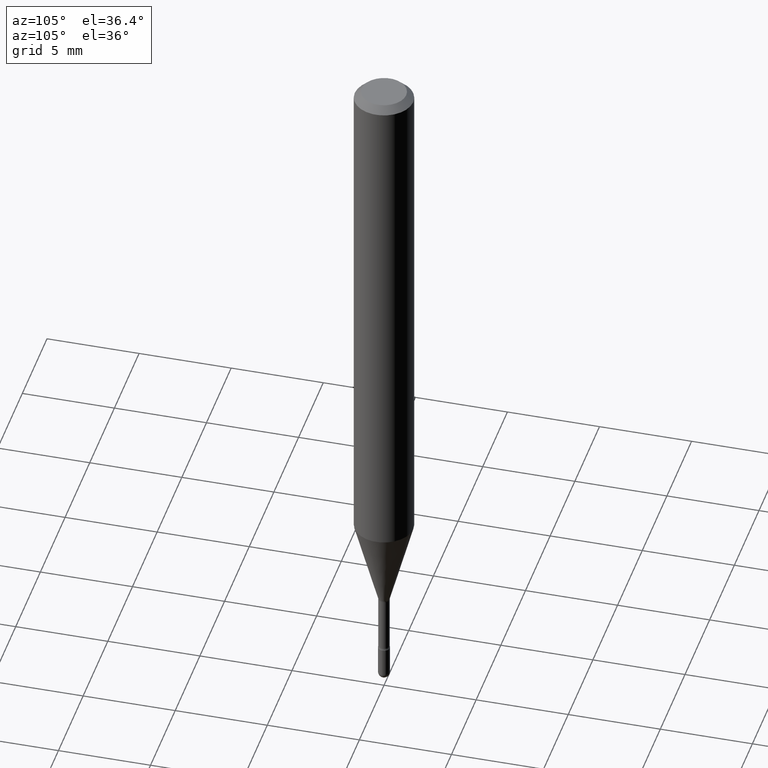
[diagram: clean part render]
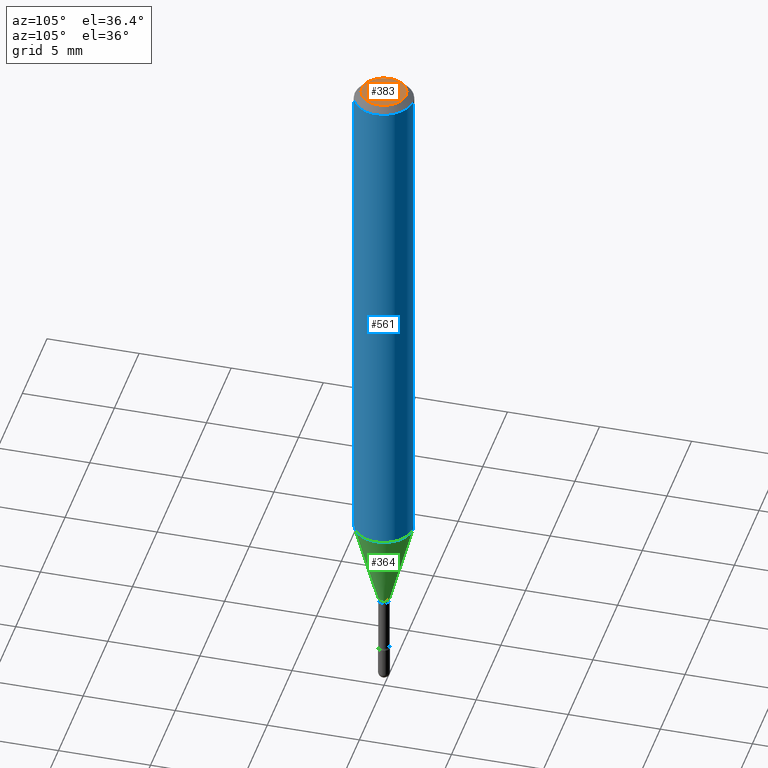
[diagram: same view with three faces highlighted in distinct colors, each labeled with its STEP entity id]
A machine part, auxiliary view with three faces highlighted in distinct colors.
Their STEP definitions:

[orange] entity #383 — the highlighted planar face has unit normal (0, -0, -1).
#10 = EDGE_CURVE ( 'NONE', #212, #291, #296, .T. ) ;
#27 = CARTESIAN_POINT ( 'NONE',  ( 3.316907271900976096E-16, 0.04749999999999999362, 3.181419317578622669E-17 ) ) ;
#38 = CARTESIAN_POINT ( 'NONE',  ( 2.022777484196571677E-45, -2.889700301407352893E-31, -8.273977879351593890E-17 ) ) ;
#48 = AXIS2_PLACEMENT_3D ( 'NONE', #507, #234, #360 ) ;
#63 = ORIENTED_EDGE ( 'NONE', *, *, #303, .T. ) ;
#66 = PLANE ( 'NONE',  #207 ) ;
#195 = DIRECTION ( 'NONE',  ( 2.445362175932988098E-29, -3.491634039433238901E-15, -1.000000000000000000 ) ) ;
#207 = AXIS2_PLACEMENT_3D ( 'NONE', #27, #195, #362 ) ;
#212 = VERTEX_POINT ( 'NONE', #251 ) ;
#234 = DIRECTION ( 'NONE',  ( -2.445362175932988378E-29, 3.491634039433238901E-15, 1.000000000000000000 ) ) ;
#251 = CARTESIAN_POINT ( 'NONE',  ( -3.773273898774340269E-16, -0.04749999999999999362, 8.311283807956289658E-17 ) ) ;
#264 = DIRECTION ( 'NONE',  ( -2.445362175932988378E-29, 3.491634039433238901E-15, 1.000000000000000000 ) ) ;
#280 = CIRCLE ( 'NONE', #48, 0.04749999999999999362 ) ;
#291 = VERTEX_POINT ( 'NONE', #464 ) ;
#296 = CIRCLE ( 'NONE', #534, 0.04749999999999999362 ) ;
#303 = EDGE_CURVE ( 'NONE', #291, #212, #280, .T. ) ;
#319 = ORIENTED_EDGE ( 'NONE', *, *, #10, .T. ) ;
#359 = EDGE_LOOP ( 'NONE', ( #63, #319 ) ) ;
#360 = DIRECTION ( 'NONE',  ( -6.982962677686266711E-15, -1.000000000000000000, 3.491634039433238901E-15 ) ) ;
#362 = DIRECTION ( 'NONE',  ( 6.982962677686265922E-15, 1.000000000000000000, -3.491634039433238901E-15 ) ) ;
#383 = ADVANCED_FACE ( 'NONE', ( #463 ), #66, .F. ) ;
#403 = DIRECTION ( 'NONE',  ( -6.982962677686266711E-15, -1.000000000000000000, 3.491634039433238901E-15 ) ) ;
#463 = FACE_OUTER_BOUND ( 'NONE', #359, .T. ) ;
#464 = CARTESIAN_POINT ( 'NONE',  ( 3.840629472727447874E-16, 0.04749999999999999362, -2.485923956665947867E-16 ) ) ;
#507 = CARTESIAN_POINT ( 'NONE',  ( 2.022777484196571677E-45, -2.889700301407352893E-31, -8.273977879351593890E-17 ) ) ;
#534 = AXIS2_PLACEMENT_3D ( 'NONE', #38, #264, #403 ) ;

[blue] entity #561 — the highlighted cylindrical surface (edge-blend (fillet) strip) has radius 1.5875 mm, axis along (-0, 0, 1).
#22 = ORIENTED_EDGE ( 'NONE', *, *, #286, .F. ) ;
#25 = AXIS2_PLACEMENT_3D ( 'NONE', #119, #439, #289 ) ;
#37 = EDGE_CURVE ( 'NONE', #467, #414, #210, .T. ) ;
#97 = EDGE_CURVE ( 'NONE', #467, #279, #197, .T. ) ;
#116 = DIRECTION ( 'NONE',  ( -2.445362175932988378E-29, 3.491634039433238901E-15, 1.000000000000000000 ) ) ;
#119 = CARTESIAN_POINT ( 'NONE',  ( -1.169113584055446105E-44, 1.669184350826100908E-30, 4.780733988912460139E-16 ) ) ;
#120 = DIRECTION ( 'NONE',  ( -2.445362175932988378E-29, 3.491634039433238901E-15, 1.000000000000000000 ) ) ;
#141 = ORIENTED_EDGE ( 'NONE', *, *, #97, .T. ) ;
#171 = CARTESIAN_POINT ( 'NONE',  ( 4.440892098500625669E-16, 0.06250000000000000000, 2.598462714266686566E-16 ) ) ;
#196 = CARTESIAN_POINT ( 'NONE',  ( 4.440892098500896347E-16, 0.06249999999999612116, -1.110598421515880174 ) ) ;
#197 = CIRCLE ( 'NONE', #357, 0.06250000000000000000 ) ;
#210 = LINE ( 'NONE', #475, #505 ) ;
#218 = FACE_OUTER_BOUND ( 'NONE', #368, .T. ) ;
#240 = CARTESIAN_POINT ( 'NONE',  ( -4.364351673553912750E-16, -0.06250000000000005551, -0.01499999999999986587 ) ) ;
#279 = VERTEX_POINT ( 'NONE', #196 ) ;
#286 = EDGE_CURVE ( 'NONE', #414, #497, #469, .T. ) ;
#289 = DIRECTION ( 'NONE',  ( -6.982962677686265922E-15, -1.000000000000000000, 3.491634039433238901E-15 ) ) ;
#304 = ORIENTED_EDGE ( 'NONE', *, *, #537, .T. ) ;
#321 = DIRECTION ( 'NONE',  ( -6.982962677686265922E-15, -1.000000000000000000, 3.483106191921935554E-15 ) ) ;
#326 = DIRECTION ( 'NONE',  ( -2.445362175932988378E-29, 3.491634039433238901E-15, 1.000000000000000000 ) ) ;
#339 = LINE ( 'NONE', #171, #500 ) ;
#357 = AXIS2_PLACEMENT_3D ( 'NONE', #473, #120, #388 ) ;
#363 = CARTESIAN_POINT ( 'NONE',  ( 3.668043263899502851E-31, -5.237451059149887318E-17, -0.01500000000000008271 ) ) ;
#368 = EDGE_LOOP ( 'NONE', ( #141, #304, #22, #457 ) ) ;
#388 = DIRECTION ( 'NONE',  ( -6.982962677686265922E-15, -1.000000000000000000, 4.370956789862821150E-15 ) ) ;
#393 = CARTESIAN_POINT ( 'NONE',  ( 4.440892098500899305E-16, 0.06249999999999995143, -0.01500000000000030129 ) ) ;
#414 = VERTEX_POINT ( 'NONE', #240 ) ;
#435 = DIRECTION ( 'NONE',  ( -2.445362175932988378E-29, 3.491634039433238901E-15, 1.000000000000000000 ) ) ;
#439 = DIRECTION ( 'NONE',  ( -2.445362175932988378E-29, 3.491634039433238901E-15, 1.000000000000000000 ) ) ;
#457 = ORIENTED_EDGE ( 'NONE', *, *, #37, .F. ) ;
#467 = VERTEX_POINT ( 'NONE', #548 ) ;
#469 = CIRCLE ( 'NONE', #558, 0.06250000000000000000 ) ;
#473 = CARTESIAN_POINT ( 'NONE',  ( 2.715815372625813924E-29, -3.877803252705670068E-15, -1.110598421515879952 ) ) ;
#475 = CARTESIAN_POINT ( 'NONE',  ( -4.364351673553916201E-16, -0.06250000000000000000, 6.963005263558235192E-16 ) ) ;
#480 = CYLINDRICAL_SURFACE ( 'NONE', #25, 0.06250000000000000000 ) ;
#497 = VERTEX_POINT ( 'NONE', #393 ) ;
#500 = VECTOR ( 'NONE', #435, 39.37007874015748143 ) ;
#505 = VECTOR ( 'NONE', #116, 39.37007874015748143 ) ;
#537 = EDGE_CURVE ( 'NONE', #279, #497, #339, .T. ) ;
#548 = CARTESIAN_POINT ( 'NONE',  ( -4.364351673553645523E-16, -0.06250000000000388578, -1.110598421515879730 ) ) ;
#558 = AXIS2_PLACEMENT_3D ( 'NONE', #363, #326, #321 ) ;
#561 = ADVANCED_FACE ( 'NONE', ( #218 ), #480, .T. ) ;

[green] entity #364 — the highlighted conical surface has half-angle 15 deg.
#1 = DIRECTION ( 'NONE',  ( -2.445362175932988378E-29, 3.491634039433238901E-15, 1.000000000000000000 ) ) ;
#52 = DIRECTION ( 'NONE',  ( -6.982962677686265922E-15, -1.000000000000000000, 0.000000000000000000 ) ) ;
#75 = LINE ( 'NONE', #274, #146 ) ;
#82 = CARTESIAN_POINT ( 'NONE',  ( 2.656048273965166204E-16, 0.01226111260565944903, -1.298092501787273090 ) ) ;
#93 = CARTESIAN_POINT ( 'NONE',  ( 8.712044494294306372E-17, 0.01226111260565944557, -1.298092501787273090 ) ) ;
#97 = EDGE_CURVE ( 'NONE', #467, #279, #197, .T. ) ;
#112 = ORIENTED_EDGE ( 'NONE', *, *, #97, .F. ) ;
#120 = DIRECTION ( 'NONE',  ( -2.445362175932988378E-29, 3.491634039433238901E-15, 1.000000000000000000 ) ) ;
#123 = DIRECTION ( 'NONE',  ( -6.982962677686265922E-15, -1.000000000000000000, 0.000000000000000000 ) ) ;
#130 = CARTESIAN_POINT ( 'NONE',  ( -8.561889171222842652E-17, -0.01226111260566851296, -1.298092501787273090 ) ) ;
#142 = VERTEX_POINT ( 'NONE', #82 ) ;
#146 = VECTOR ( 'NONE', #371, 39.37007874015748143 ) ;
#173 = ORIENTED_EDGE ( 'NONE', *, *, #367, .F. ) ;
#196 = CARTESIAN_POINT ( 'NONE',  ( 4.440892098500896347E-16, 0.06249999999999612116, -1.110598421515880174 ) ) ;
#197 = CIRCLE ( 'NONE', #357, 0.06250000000000000000 ) ;
#206 = ORIENTED_EDGE ( 'NONE', *, *, #484, .T. ) ;
#274 = CARTESIAN_POINT ( 'NONE',  ( -8.561889171222842652E-17, -0.01226111260566851296, -1.298092501787273090 ) ) ;
#279 = VERTEX_POINT ( 'NONE', #196 ) ;
#294 = DIRECTION ( 'NONE',  ( 1.839019923739597949E-15, 0.2588190451025246253, 0.9659258262890670910 ) ) ;
#308 = CONICAL_SURFACE ( 'NONE', #332, 0.01226111260566397840, 0.2617993877991499629 ) ;
#332 = AXIS2_PLACEMENT_3D ( 'NONE', #375, #1, #123 ) ;
#335 = ORIENTED_EDGE ( 'NONE', *, *, #479, .T. ) ;
#357 = AXIS2_PLACEMENT_3D ( 'NONE', #473, #120, #388 ) ;
#364 = ADVANCED_FACE ( 'NONE', ( #380 ), #308, .T. ) ;
#367 = EDGE_CURVE ( 'NONE', #418, #467, #75, .T. ) ;
#371 = DIRECTION ( 'NONE',  ( -1.807323732225328167E-15, -0.2588190451025179084, 0.9659258262890690894 ) ) ;
#375 = CARTESIAN_POINT ( 'NONE',  ( 3.174306304732822436E-29, -4.532463965573495143E-15, -1.298092501787273090 ) ) ;
#380 = FACE_OUTER_BOUND ( 'NONE', #554, .T. ) ;
#388 = DIRECTION ( 'NONE',  ( -6.982962677686265922E-15, -1.000000000000000000, 4.370956789862821150E-15 ) ) ;
#417 = AXIS2_PLACEMENT_3D ( 'NONE', #483, #487, #52 ) ;
#418 = VERTEX_POINT ( 'NONE', #130 ) ;
#422 = LINE ( 'NONE', #93, #559 ) ;
#467 = VERTEX_POINT ( 'NONE', #548 ) ;
#473 = CARTESIAN_POINT ( 'NONE',  ( 2.715815372625813924E-29, -3.877803252705670068E-15, -1.110598421515879952 ) ) ;
#479 = EDGE_CURVE ( 'NONE', #418, #142, #535, .T. ) ;
#483 = CARTESIAN_POINT ( 'NONE',  ( 3.174306304732822436E-29, -4.532463965573495143E-15, -1.298092501787273090 ) ) ;
#484 = EDGE_CURVE ( 'NONE', #142, #279, #422, .T. ) ;
#487 = DIRECTION ( 'NONE',  ( -2.445362175932988378E-29, 3.491634039433238901E-15, 1.000000000000000000 ) ) ;
#535 = CIRCLE ( 'NONE', #417, 0.01226111260566397840 ) ;
#548 = CARTESIAN_POINT ( 'NONE',  ( -4.364351673553645523E-16, -0.06250000000000388578, -1.110598421515879730 ) ) ;
#554 = EDGE_LOOP ( 'NONE', ( #335, #206, #112, #173 ) ) ;
#559 = VECTOR ( 'NONE', #294, 39.37007874015748854 ) ;